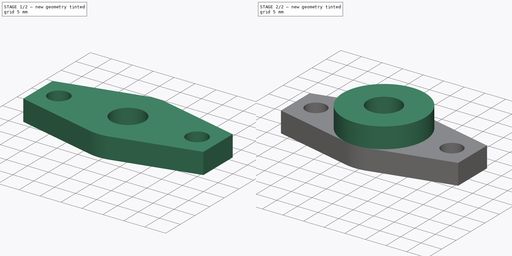
[diagram: build sequence overview — one tinted view per stage of 2, left to right]
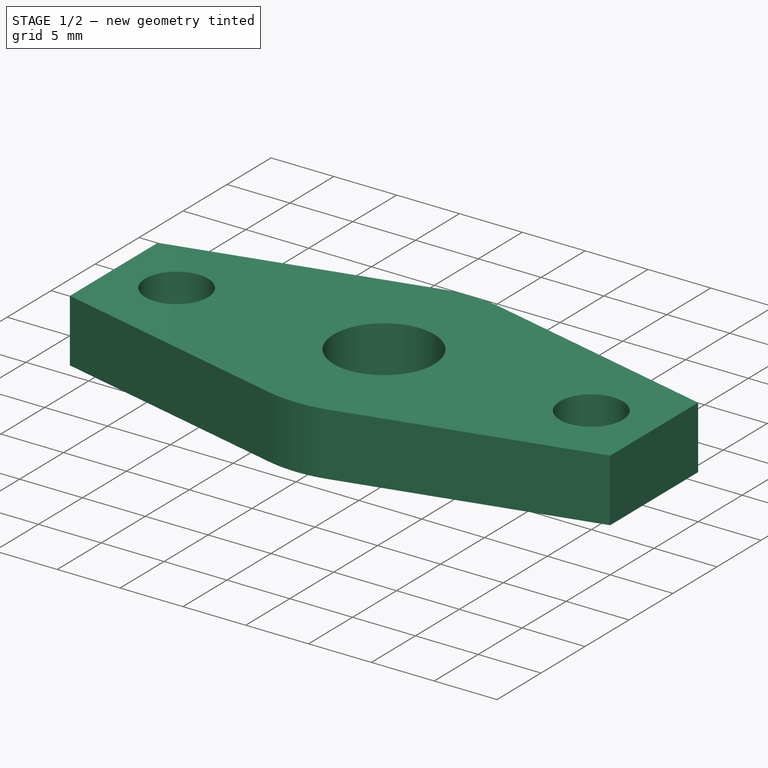
[diagram: stage 1 of 2 — iso view after this stage's code; geometry added in this stage tinted green]
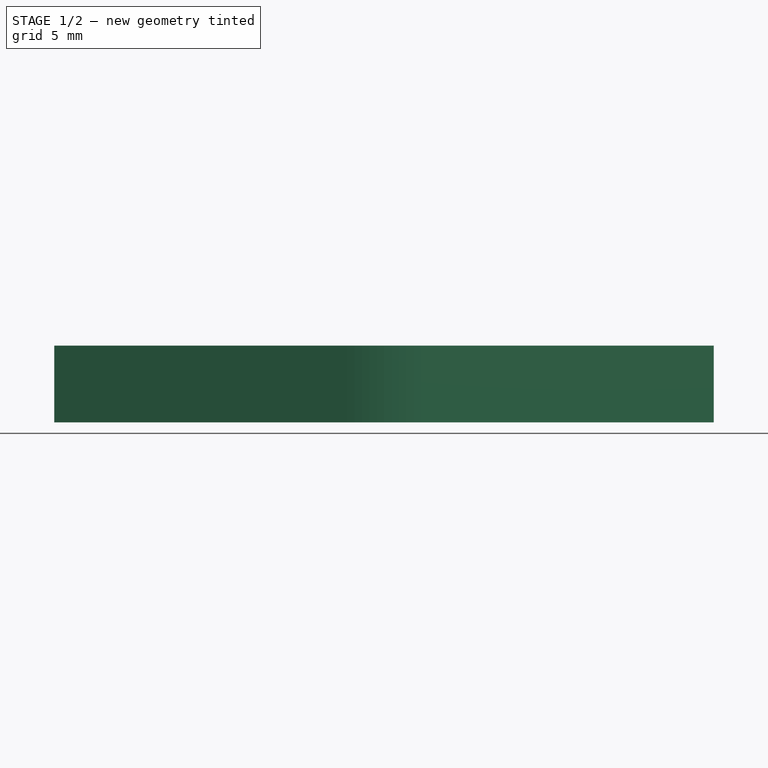
[diagram: stage 1 of 2 — front view after this stage's code; geometry added in this stage tinted green]
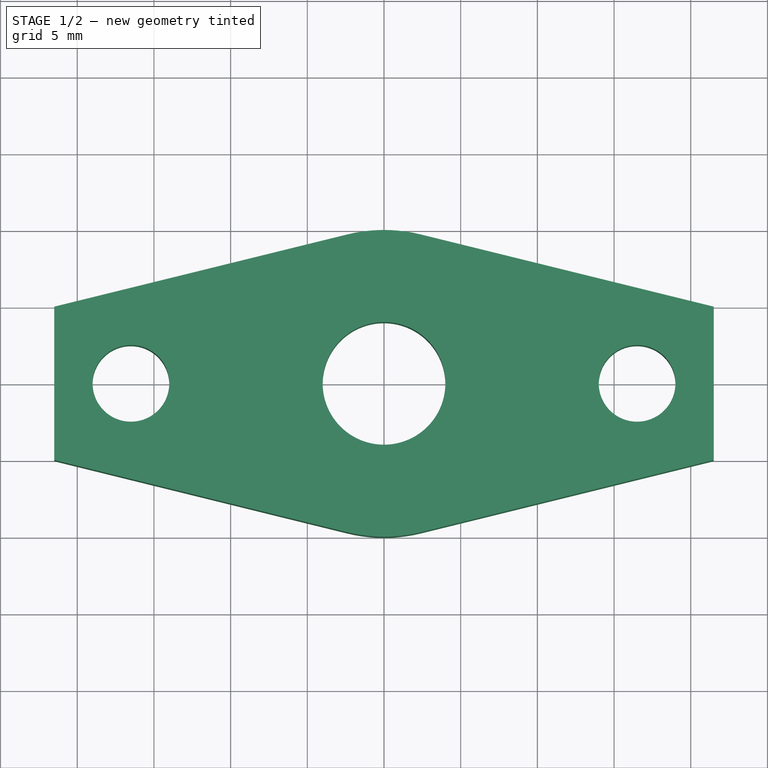
[diagram: stage 1 of 2 — top view after this stage's code; geometry added in this stage tinted green]
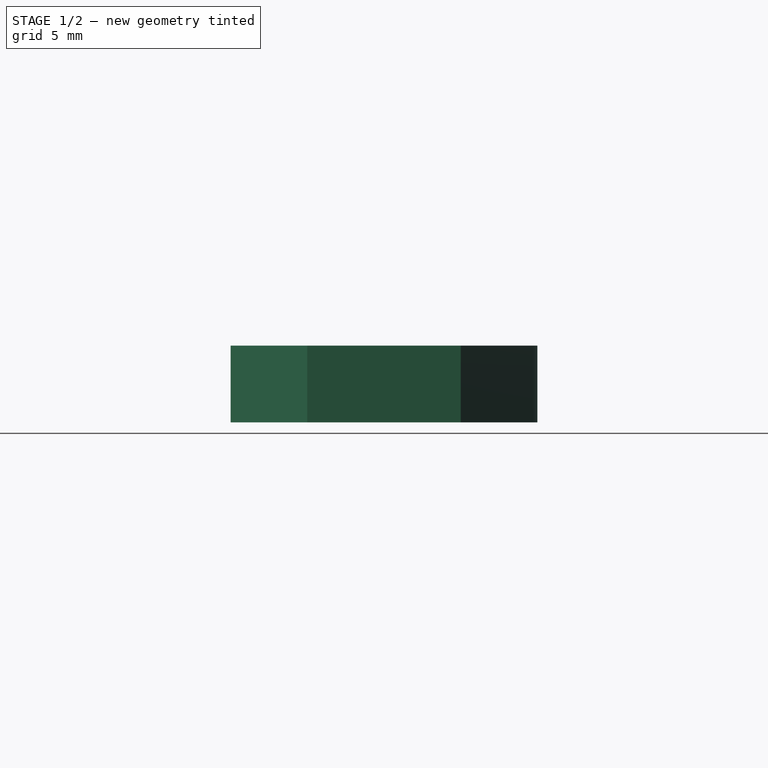
[diagram: stage 1 of 2 — right view after this stage's code; geometry added in this stage tinted green]
FCSTD DOCUMENT  (FreeCAD 0.18R14555 (Git shallow))
Label: rod-mount
License: All rights reserved
LicenseURL: http://en.wikipedia.org/wiki/All_rights_reserved
objects: Sketcher::SketchObject×2, PartDesign::Pad×2, PartDesign::Body×1
note: 7 computed .brp shape members not serialized (recipe doc carries the construction recipe); baked Part::Feature solids carry a one-line shape summary decoded from their .brp

FEATURE [Sketcher::SketchObject] Sketch
  MapMode = 5
  Support = -> [XY_Plane]
  sketch-geometry (14):
    g0: Circle CenterX=0 CenterY=0 CenterZ=0 NormalX=0 NormalY=0 NormalZ=1 AngleXU=0 Radius=4
    g1: Circle CenterX=-16.5 CenterY=0 CenterZ=0 NormalX=0 NormalY=0 NormalZ=1 AngleXU=0 Radius=2.5
    g2: Circle CenterX=16.5 CenterY=0 CenterZ=0 NormalX=0 NormalY=0 NormalZ=1 AngleXU=0 Radius=2.5
    g3: ArcOfCircle CenterX=0 CenterY=0 CenterZ=0 NormalX=0 NormalY=0 NormalZ=1 AngleXU=0 Radius=10 StartAngle=4.47073 EndAngle=4.95405
    g4: LineSegment StartX=-21.5 StartY=5 StartZ=0 EndX=-21.5 EndY=-5 EndZ=0
    g5: LineSegment StartX=-21.5 StartY=-5 StartZ=0 EndX=-2.39316 EndY=-9.70942 EndZ=0
    g6: LineSegment StartX=2.39316 StartY=-9.70942 StartZ=0 EndX=21.5 EndY=-5 EndZ=0
    g7: LineSegment StartX=21.5 StartY=-5 StartZ=0 EndX=21.5 EndY=5 EndZ=0
    g8: LineSegment StartX=21.5 StartY=5 StartZ=0 EndX=2.39316 EndY=9.70942 EndZ=0
    g9: LineSegment StartX=-21.5 StartY=5 StartZ=0 EndX=-2.39316 EndY=9.70942 EndZ=0
    g10: ArcOfCircle CenterX=0 CenterY=0 CenterZ=0 NormalX=0 NormalY=0 NormalZ=1 AngleXU=0 Radius=10 StartAngle=1.32914 EndAngle=1.81246
    g11: LineSegment [constr] StartX=-2.39316 StartY=9.70942 StartZ=0 EndX=-2.39316 EndY=-9.70942 EndZ=0
    g12: LineSegment [constr] StartX=2.39316 StartY=-9.70942 StartZ=0 EndX=2.39316 EndY=9.70942 EndZ=0
    g13: LineSegment [constr] StartX=-2.39316 StartY=9.70942 StartZ=0 EndX=2.39316 EndY=9.70942 EndZ=0
  constraints (33):
    c: Coincident(g0,g-1)
    c: PointOnObject(g2,g-1)
    c: Equal(g1,g2)
    c: Symmetric(g1,g2,g-2)
    c: Radius(g0) = 4
    c: Coincident(g3,g0)
    c: Radius(g3) = 10
    c: DistanceX(g1,g2) = 33
    c: Radius(g1) = 2.5
    c: Vertical(g4)
    c: Coincident(g4,g5)
    c: Coincident(g6,g7)
    c: Vertical(g7)
    c: Coincident(g7,g8)
    c: Coincident(g9,g4)
    c: DistanceX(g4,g7) = 43
    c: Equal(g3,g10)
    c: Coincident(g3,g10)
    c: Tangent(g3,g5) = -1.5708
    c: Tangent(g3,g6) = -1.5708
    c: Tangent(g10,g9) = 1.5708
    c: Tangent(g10,g8) = -1.5708
    c: Coincident(g11,g9)
    c: Coincident(g11,g3)
    c: Vertical(g11)
    c: Coincident(g12,g3)
    c: Coincident(g12,g8)
    c: Vertical(g12)
    c: Coincident(g13,g9)
    c: Coincident(g13,g8)
    c: Horizontal(g13)
    c: DistanceY(g4,g4) = 10
    c: Equal(g7,g4)
FEATURE [PartDesign::Pad] Pad
  Length = 5
  Length2 = 100
  Profile = -> Sketch
  Type = 0
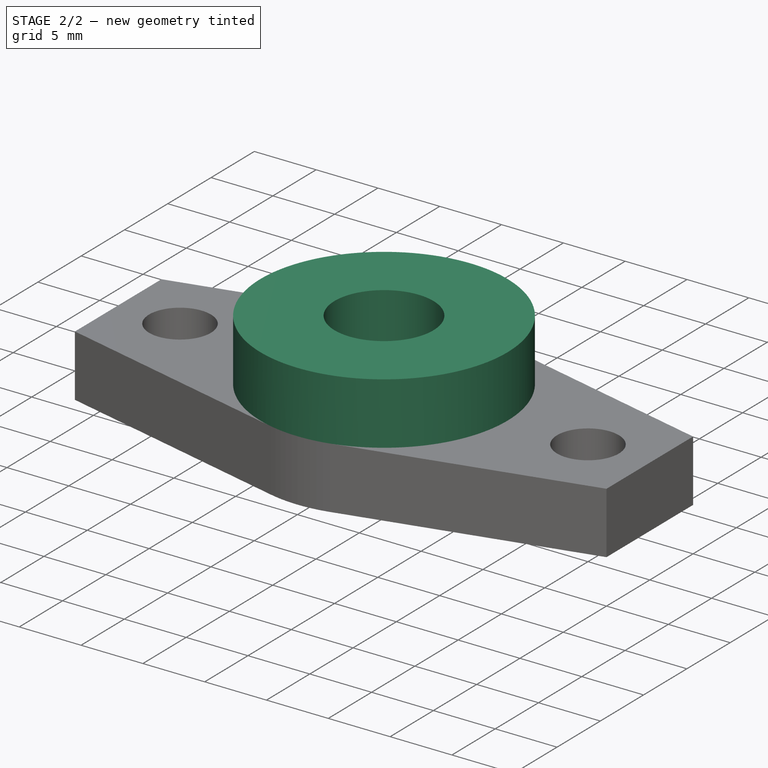
[diagram: stage 2 of 2 — iso view after this stage's code; geometry added in this stage tinted green]
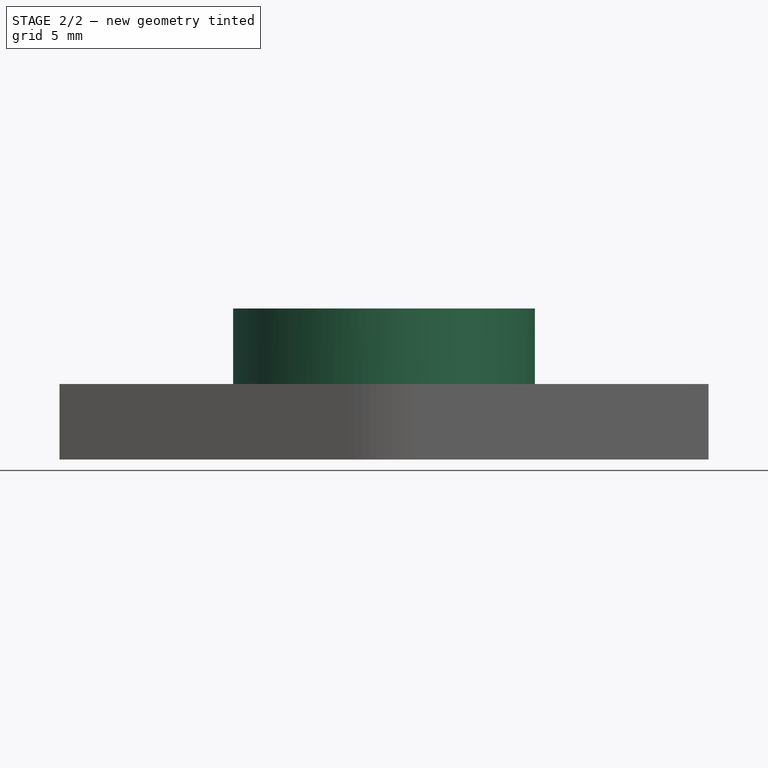
[diagram: stage 2 of 2 — front view after this stage's code; geometry added in this stage tinted green]
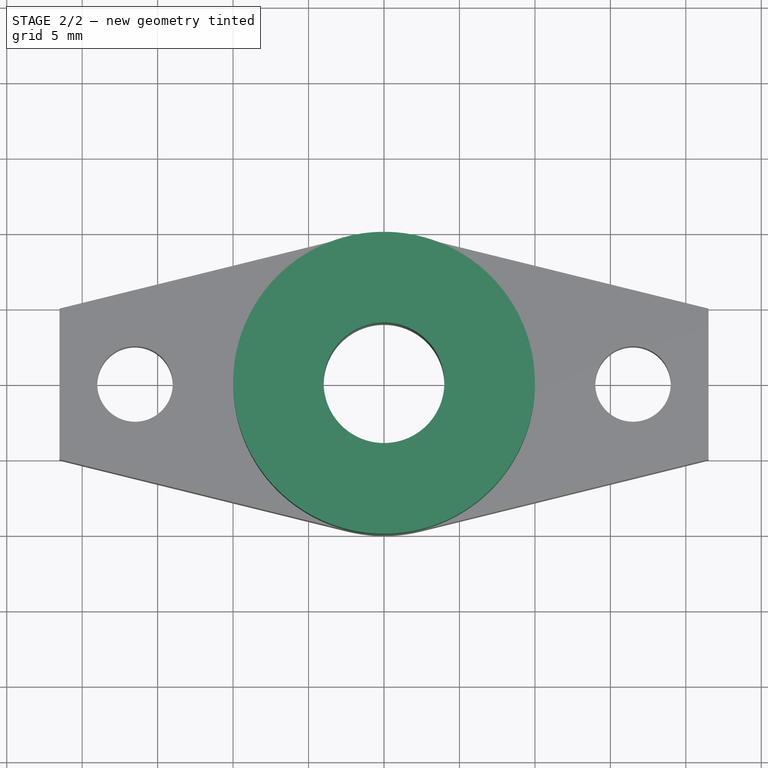
[diagram: stage 2 of 2 — top view after this stage's code; geometry added in this stage tinted green]
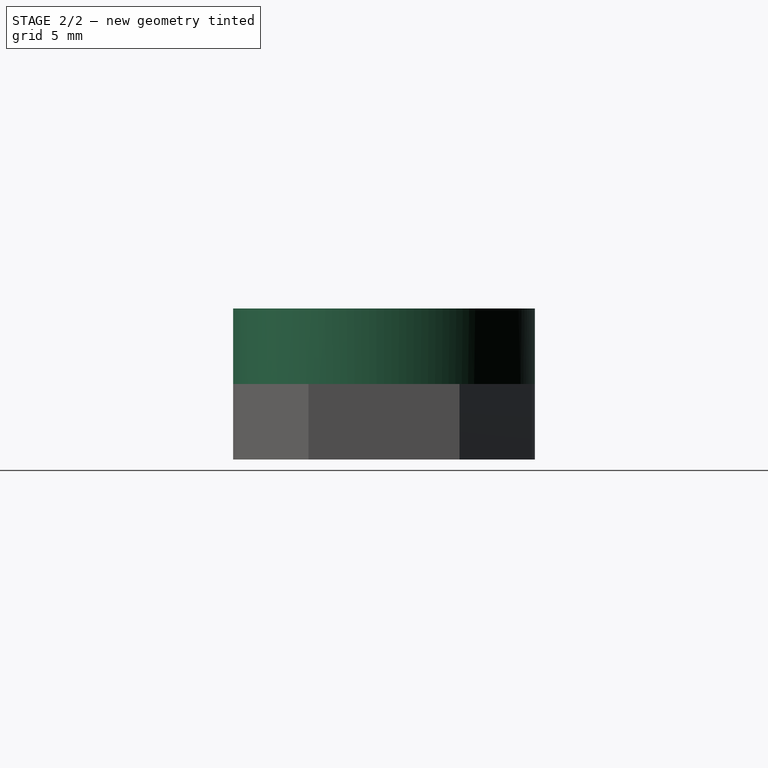
[diagram: stage 2 of 2 — right view after this stage's code; geometry added in this stage tinted green]
FEATURE [Sketcher::SketchObject] Sketch001
  ExternalGeometry = -> [Pad]
  MapMode = 5
  Placement = pos=(0,0,5) rot=(0,0,1;0rad)
  Support = -> [Pad]
  sketch-geometry (2):
    g0: Circle CenterX=0 CenterY=0 CenterZ=0 NormalX=0 NormalY=0 NormalZ=1 AngleXU=0 Radius=10
    g1: Circle CenterX=0 CenterY=0 CenterZ=0 NormalX=0 NormalY=0 NormalZ=1 AngleXU=0 Radius=4
  constraints (4):
    c: Coincident(g0,g-1)
    c: PointOnObject(g-3,g0)
    c: Coincident(g1,g0)
    c: Equal(g-4,g1)
FEATURE [PartDesign::Pad] Pad001
  BaseFeature = -> Pad
  Length = 5
  Length2 = 100
  Profile = -> Sketch001
  Type = 0
FEATURE [PartDesign::Body] Body
  Group = -> [Sketch,Pad,Sketch001,Pad001]
  Origin = -> Origin
  Tip = -> Pad001
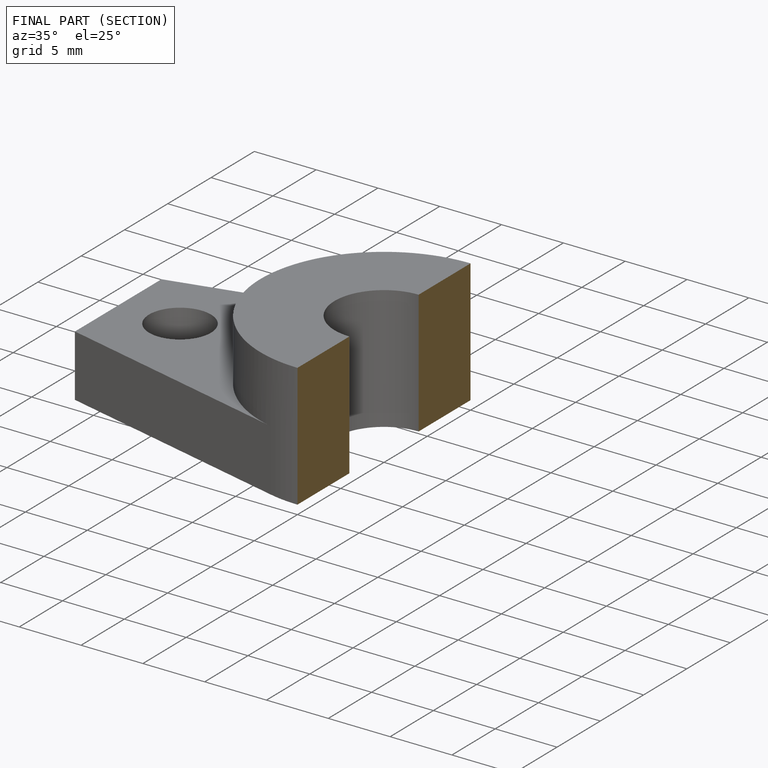
[diagram: finished part — half-section view (interior)]
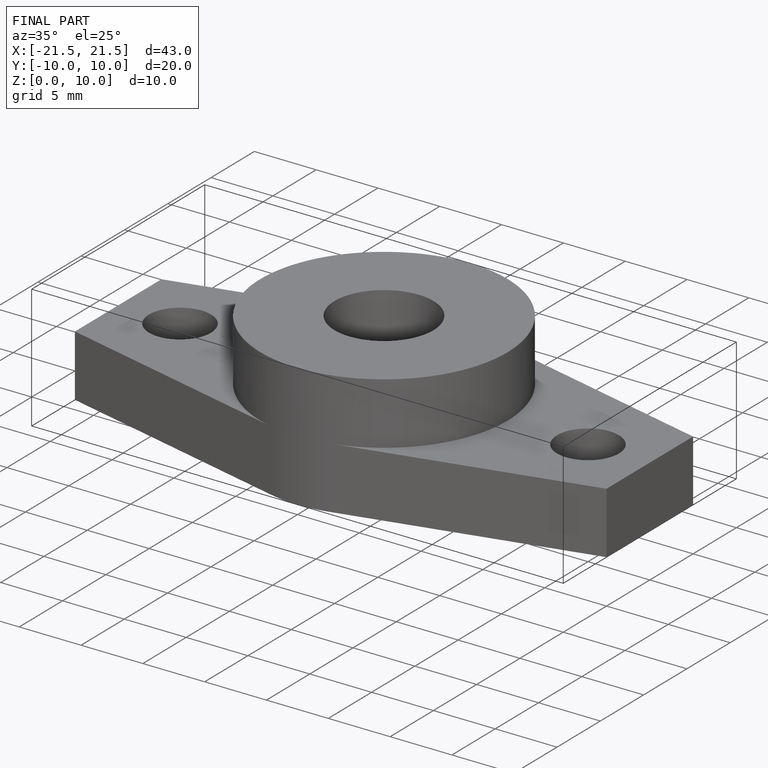
[diagram: finished part — iso view with bounding-box wireframe]
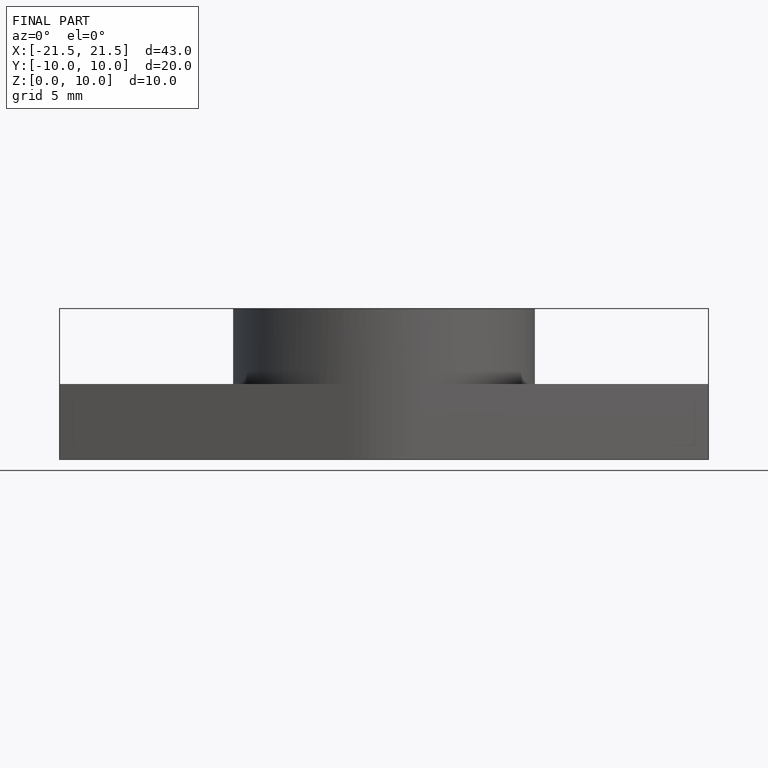
[diagram: finished part — front view with bounding-box wireframe]
